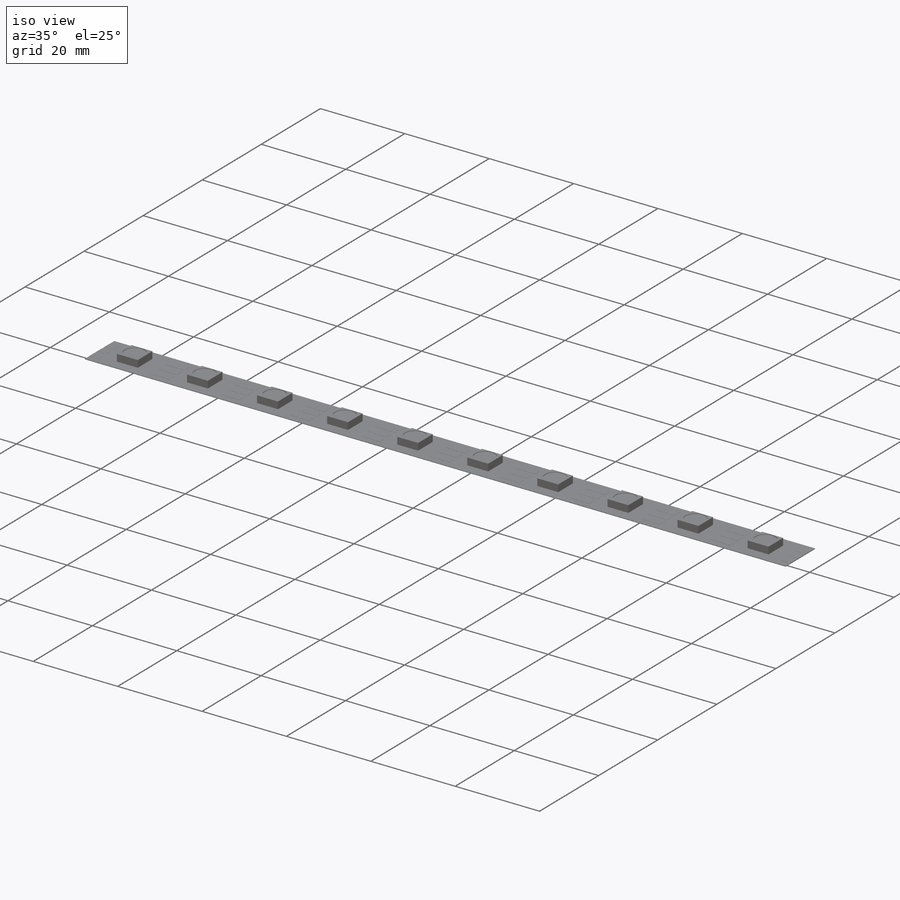
[diagram: iso view]
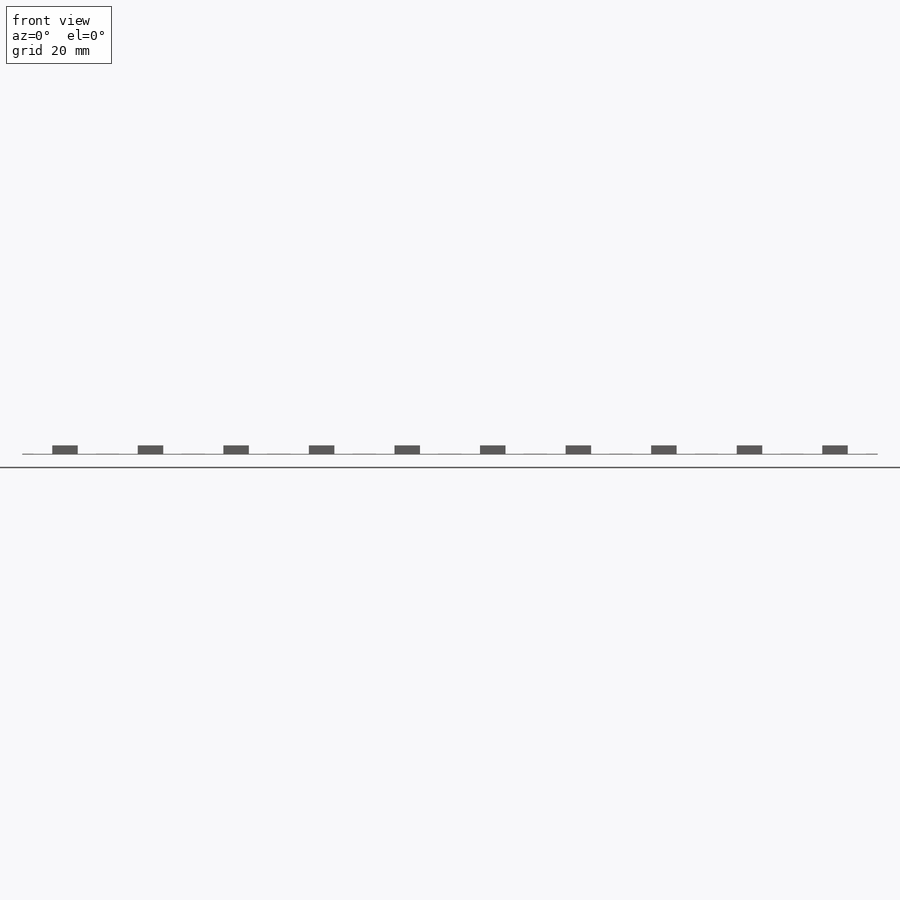
[diagram: front view]
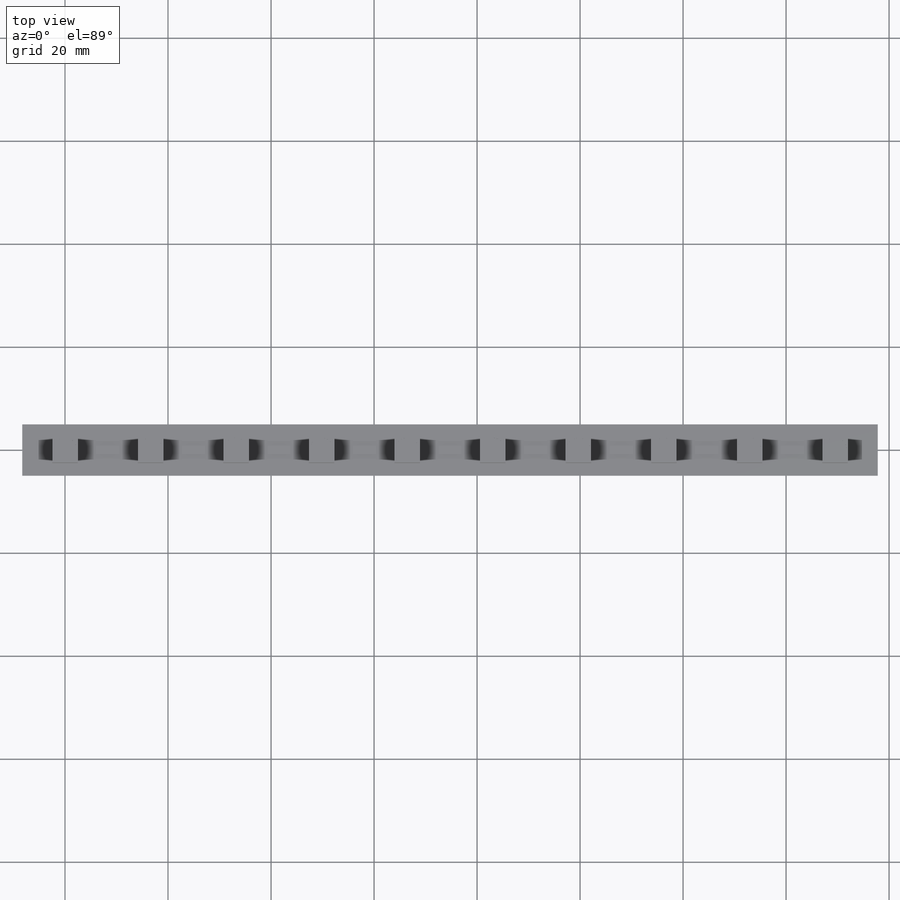
[diagram: top view]
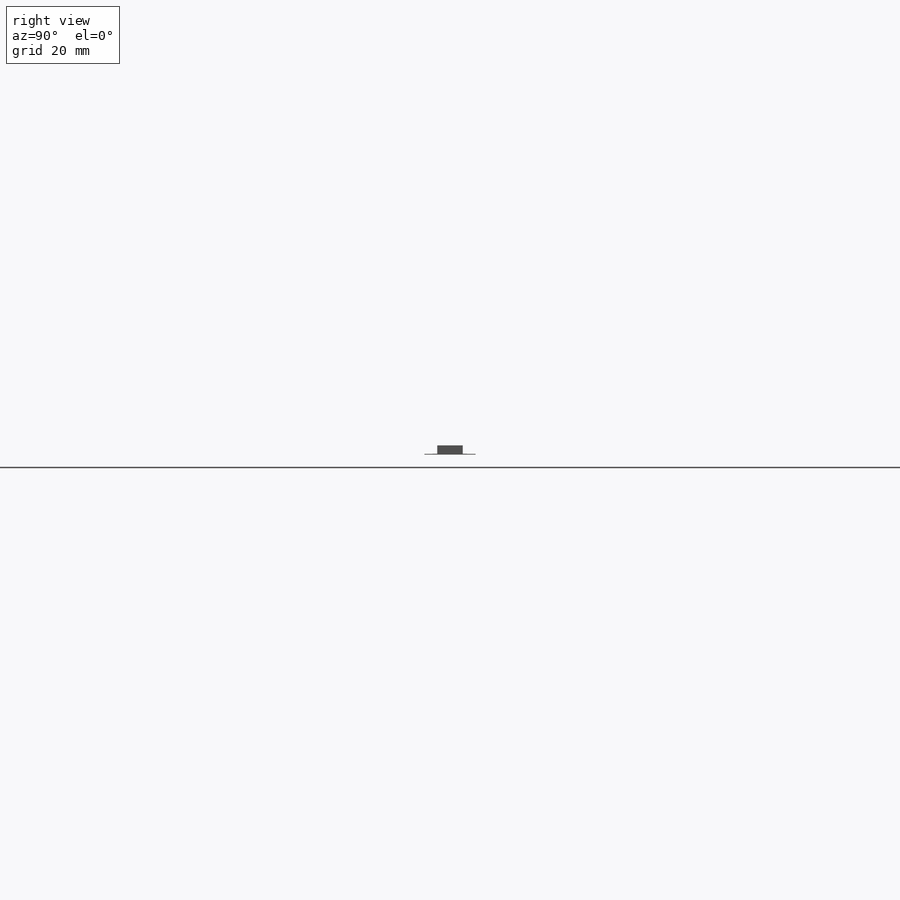
[diagram: right view]
SOLIDWORKS PART (.sldprt)
format: sldprt  version: not decoded by parser v0  size: 398,848 bytes
history: native  units: mm
features: sketch x4, extrude x3, material x1, cut_extrude x1, pattern_linear x1 (+13 scaffold rows collapsed)
feature tree (23):
  scaffold x13  (default folders/planes/origin — collapsed)
  material  "Material <not specified>"
  sketch  "Sketch1"  dims[D1=9.9568mm D2=16.6116mm]
  extrude  "Boss-Extrude1"  Depth=0.127mm
  sketch  "Sketch3"  dims[D1=4.953mm]
  extrude  "Boss-Extrude3"  Depth=1.651mm
  sketch  "Sketch4"  dims[D1=1.651mm D2=2.0]
  extrude  "Boss-Extrude4"  Depth=0.0254mm
  sketch  "Sketch5"
  cut_extrude  "Cut-Extrude1"  Depth=0.127mm
  pattern_linear  "LPattern1"  Count1=10 Count2=1 Spacing1=16.6116mm Spacing2=2.54mm
decode coverage: 8 of 9 modeling features carry decoded parameters
note: suppression state not decoded; provenance and decode notes live in map.json
